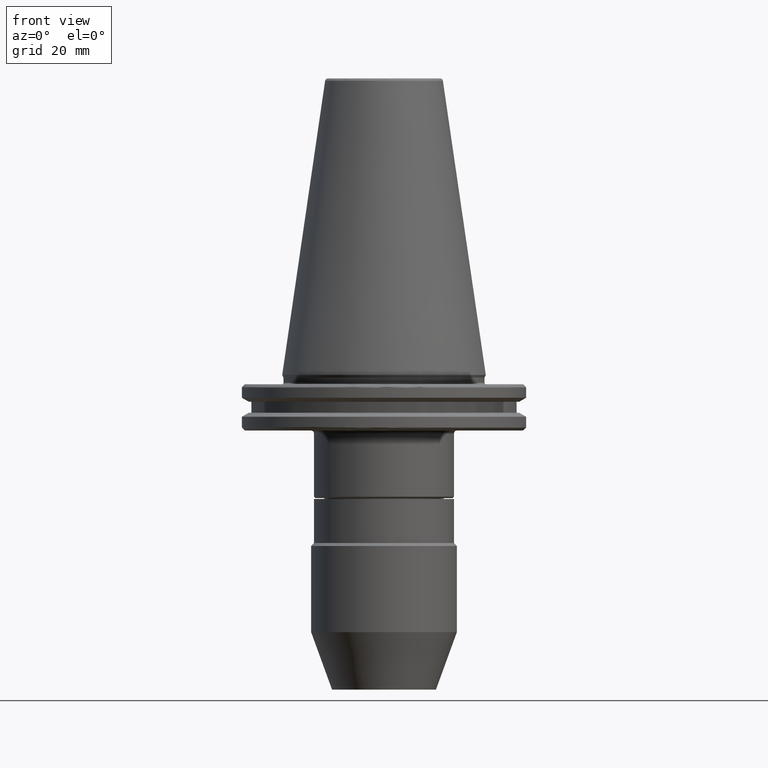
[diagram: clean part render]
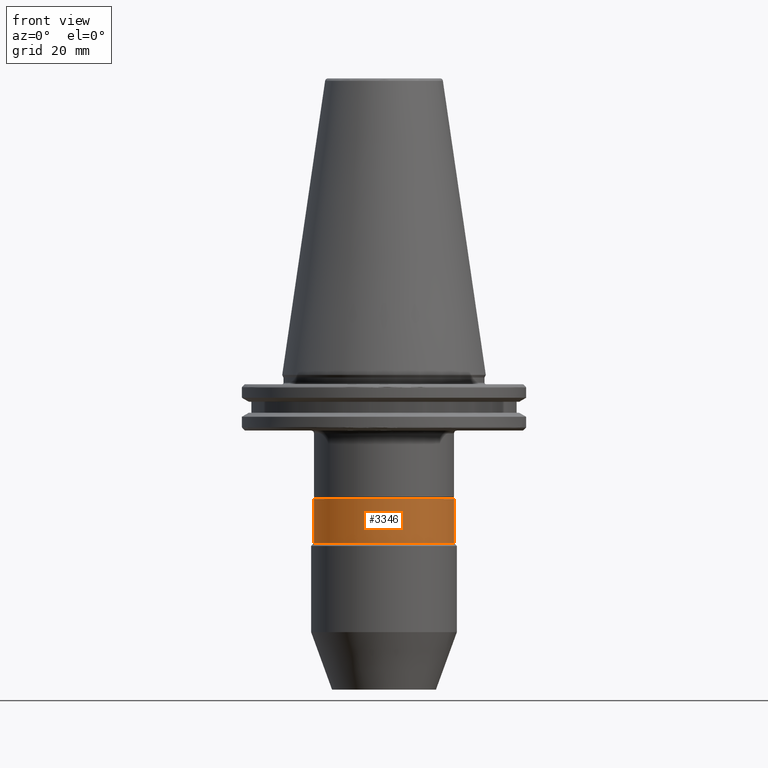
[diagram: same view with one face highlighted and labeled with its STEP entity id]
A machine part, front view. The second image highlights one B-rep face of the part: STEP entity #3346.
In plain terms, the highlighted cylindrical surface (partial cylindrical patch) has radius 24 mm, axis along (0, 0, 1).
Its self-contained STEP definition (entity closure, byte-faithful):
#30 = DIRECTION ( 'NONE',  ( 0.0000000000000000000, 0.0000000000000000000, 1.000000000000000000 ) ) ;
#115 = DIRECTION ( 'NONE',  ( 1.000000000000000000, 0.0000000000000000000, 0.0000000000000000000 ) ) ;
#118 = DIRECTION ( 'NONE',  ( 0.0000000000000000000, 0.0000000000000000000, 1.000000000000000000 ) ) ;
#124 = CARTESIAN_POINT ( 'NONE',  ( 0.0000000000000000000, 0.0000000000000000000, -42.59999999999999400 ) ) ;
#136 = LINE ( 'NONE', #1089, #2976 ) ;
#231 = VERTEX_POINT ( 'NONE', #841 ) ;
#288 = DIRECTION ( 'NONE',  ( 0.0000000000000000000, 0.0000000000000000000, 1.000000000000000000 ) ) ;
#301 = CARTESIAN_POINT ( 'NONE',  ( -24.00000000000000000, 2.939152317953647900E-015, 0.0000000000000000000 ) ) ;
#417 = CARTESIAN_POINT ( 'NONE',  ( -24.00000000000000000, 2.939152317953647900E-015, -42.59999999999999400 ) ) ;
#501 = CARTESIAN_POINT ( 'NONE',  ( 24.00000000000000000, 3.000384657911015500E-015, -57.69999999999998900 ) ) ;
#583 = ORIENTED_EDGE ( 'NONE', *, *, #1716, .F. ) ;
#668 = LINE ( 'NONE', #301, #3419 ) ;
#734 = DIRECTION ( 'NONE',  ( 1.000000000000000000, 0.0000000000000000000, 0.0000000000000000000 ) ) ;
#841 = CARTESIAN_POINT ( 'NONE',  ( -24.00000000000000000, 0.0000000000000000000, -57.69999999999998900 ) ) ;
#856 = VERTEX_POINT ( 'NONE', #501 ) ;
#897 = VERTEX_POINT ( 'NONE', #417 ) ;
#1089 = CARTESIAN_POINT ( 'NONE',  ( 24.00000000000000000, 0.0000000000000000000, 0.0000000000000000000 ) ) ;
#1185 = EDGE_CURVE ( 'NONE', #897, #2937, #1679, .T. ) ;
#1268 = CARTESIAN_POINT ( 'NONE',  ( 0.0000000000000000000, 0.0000000000000000000, 0.0000000000000000000 ) ) ;
#1448 = AXIS2_PLACEMENT_3D ( 'NONE', #2698, #2683, #2669 ) ;
#1679 = CIRCLE ( 'NONE', #2310, 24.00000000000000000 ) ;
#1707 = ORIENTED_EDGE ( 'NONE', *, *, #2793, .T. ) ;
#1711 = ORIENTED_EDGE ( 'NONE', *, *, #1185, .F. ) ;
#1716 = EDGE_CURVE ( 'NONE', #231, #897, #668, .T. ) ;
#1725 = CYLINDRICAL_SURFACE ( 'NONE', #2055, 24.00000000000000000 ) ;
#1819 = FACE_OUTER_BOUND ( 'NONE', #2859, .T. ) ;
#1877 = EDGE_CURVE ( 'NONE', #231, #856, #2023, .T. ) ;
#2023 = CIRCLE ( 'NONE', #1448, 24.00000000000000000 ) ;
#2055 = AXIS2_PLACEMENT_3D ( 'NONE', #1268, #2873, #734 ) ;
#2088 = CARTESIAN_POINT ( 'NONE',  ( 24.00000000000000000, 0.0000000000000000000, -42.59999999999999400 ) ) ;
#2175 = ORIENTED_EDGE ( 'NONE', *, *, #1877, .T. ) ;
#2310 = AXIS2_PLACEMENT_3D ( 'NONE', #124, #118, #115 ) ;
#2669 = DIRECTION ( 'NONE',  ( 1.000000000000000000, 0.0000000000000000000, 0.0000000000000000000 ) ) ;
#2683 = DIRECTION ( 'NONE',  ( 0.0000000000000000000, 0.0000000000000000000, 1.000000000000000000 ) ) ;
#2698 = CARTESIAN_POINT ( 'NONE',  ( 0.0000000000000000000, 0.0000000000000000000, -57.69999999999998900 ) ) ;
#2793 = EDGE_CURVE ( 'NONE', #856, #2937, #136, .T. ) ;
#2859 = EDGE_LOOP ( 'NONE', ( #583, #2175, #1707, #1711 ) ) ;
#2873 = DIRECTION ( 'NONE',  ( 0.0000000000000000000, 0.0000000000000000000, 1.000000000000000000 ) ) ;
#2937 = VERTEX_POINT ( 'NONE', #2088 ) ;
#2976 = VECTOR ( 'NONE', #30, 1000.000000000000000 ) ;
#3346 = ADVANCED_FACE ( 'NONE', ( #1819 ), #1725, .T. ) ;
#3419 = VECTOR ( 'NONE', #288, 1000.000000000000000 ) ;